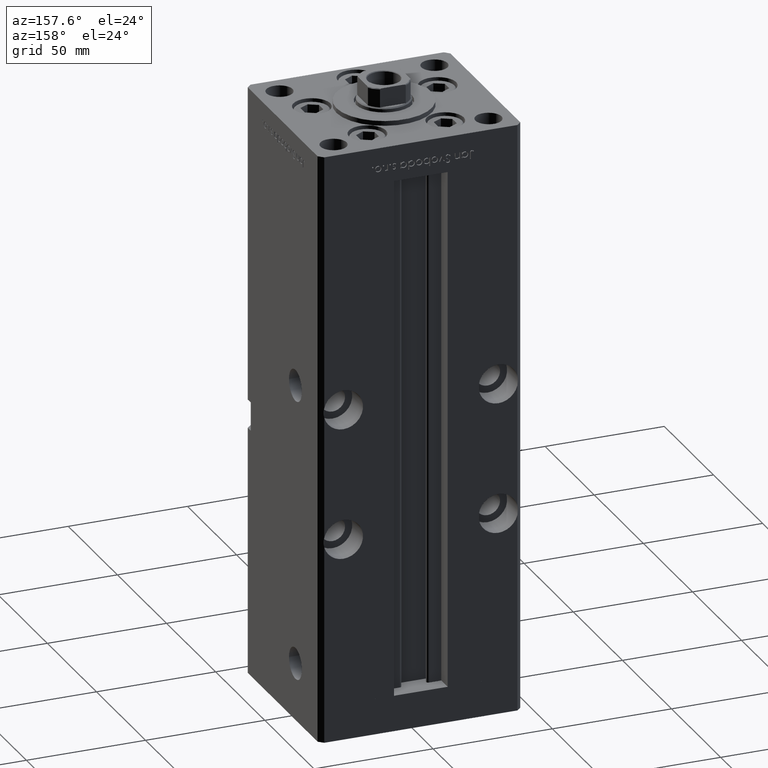
[diagram: clean part render]
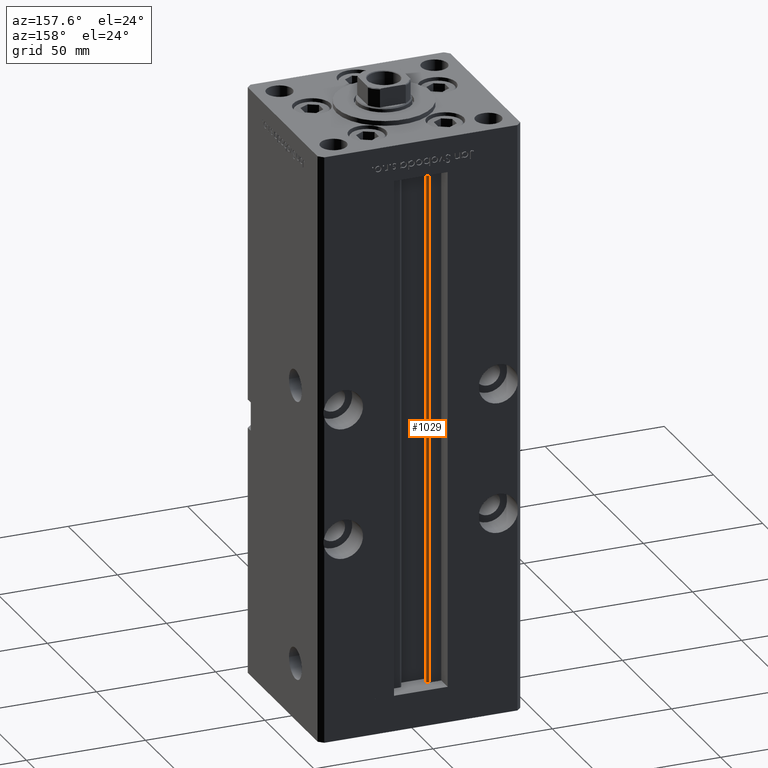
[diagram: same view with one face highlighted and labeled with its STEP entity id]
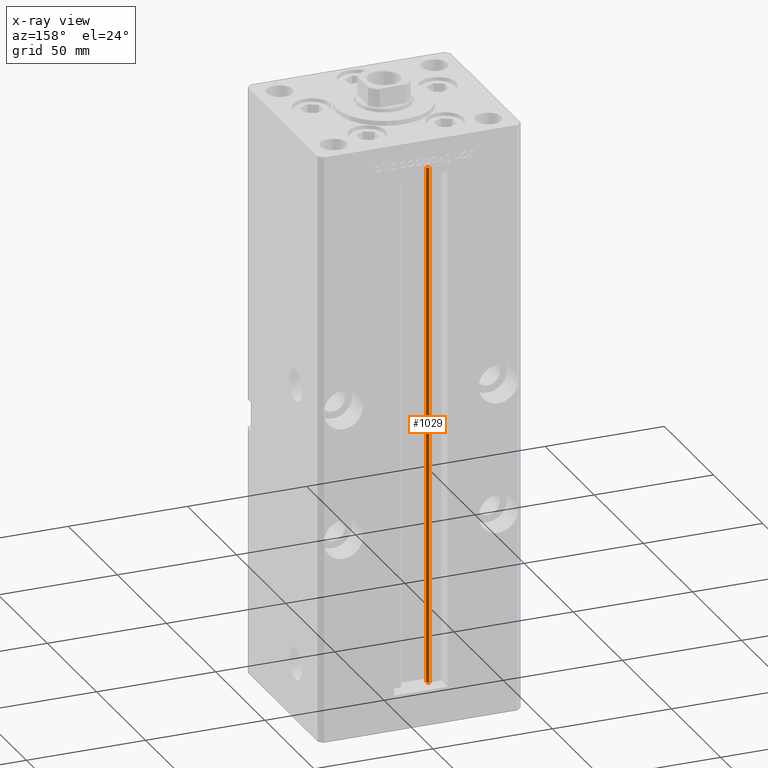
[diagram: x-ray of the same camera — body ghosted, the highlighted face saturated]
A machine part, auxiliary view. The second image highlights one B-rep face of the part: STEP entity #1029.
The next image is the same camera in x-ray: the body ghosted, the highlighted face saturated — about 0% of this face is hidden behind the body in this view.
In plain terms, the highlighted cylindrical surface (edge-blend (fillet) strip) has radius 0.9333 mm, axis along (0, 0, 1).
Its self-contained STEP definition (entity closure, byte-faithful):
#1029 = ADVANCED_FACE ( 'NONE', ( #2910 ), #51487, .T. ) ;
#1266 = DIRECTION ( 'NONE',  ( 0.000000000000000000, 0.000000000000000000, -1.000000000000000000 ) ) ;
#1588 = ORIENTED_EDGE ( 'NONE', *, *, #34592, .T. ) ;
#2910 = FACE_OUTER_BOUND ( 'NONE', #8895, .T. ) ;
#4007 = CARTESIAN_POINT ( 'NONE',  ( -6.183333333333997928, 30.06666666666599852, 0.000000000000000000 ) ) ;
#6522 = EDGE_CURVE ( 'NONE', #9412, #42160, #23568, .T. ) ;
#6610 = ORIENTED_EDGE ( 'NONE', *, *, #11333, .F. ) ;
#8895 = EDGE_LOOP ( 'NONE', ( #18628, #6610, #29944, #1588 ) ) ;
#9412 = VERTEX_POINT ( 'NONE', #37231 ) ;
#10114 = LINE ( 'NONE', #18740, #12232 ) ;
#10204 = DIRECTION ( 'NONE',  ( 1.000000000000000000, 0.000000000000000000, 0.000000000000000000 ) ) ;
#11333 = EDGE_CURVE ( 'NONE', #9412, #20193, #19101, .T. ) ;
#12232 = VECTOR ( 'NONE', #43053, 1000.000000000000000 ) ;
#12508 = CARTESIAN_POINT ( 'NONE',  ( -5.249999999999996447, 30.06666666666599852, 0.000000000000000000 ) ) ;
#12663 = CIRCLE ( 'NONE', #27308, 0.9333333333340008142 ) ;
#12721 = AXIS2_PLACEMENT_3D ( 'NONE', #52286, #15316, #10204 ) ;
#13666 = CARTESIAN_POINT ( 'NONE',  ( -5.249999999999996447, 30.06666666666599852, 218.5000000000000000 ) ) ;
#15316 = DIRECTION ( 'NONE',  ( -0.000000000000000000, -0.000000000000000000, 1.000000000000000000 ) ) ;
#18628 = ORIENTED_EDGE ( 'NONE', *, *, #41846, .F. ) ;
#18721 = CARTESIAN_POINT ( 'NONE',  ( -6.183333333333997928, 31.00000000000000000, 0.000000000000000000 ) ) ;
#18740 = CARTESIAN_POINT ( 'NONE',  ( -5.249999999999996447, 30.06666666666599852, 0.000000000000000000 ) ) ;
#19101 = CIRCLE ( 'NONE', #26019, 0.9333333333340008142 ) ;
#20193 = VERTEX_POINT ( 'NONE', #12508 ) ;
#20512 = VECTOR ( 'NONE', #35752, 1000.000000000000000 ) ;
#23568 = LINE ( 'NONE', #18721, #20512 ) ;
#26019 = AXIS2_PLACEMENT_3D ( 'NONE', #4007, #38015, #33167 ) ;
#27308 = AXIS2_PLACEMENT_3D ( 'NONE', #38242, #1266, #30129 ) ;
#29944 = ORIENTED_EDGE ( 'NONE', *, *, #6522, .T. ) ;
#30129 = DIRECTION ( 'NONE',  ( 1.000000000000000000, 0.000000000000000000, 0.000000000000000000 ) ) ;
#31540 = VERTEX_POINT ( 'NONE', #13666 ) ;
#31643 = CARTESIAN_POINT ( 'NONE',  ( -6.183333333333997928, 31.00000000000000000, 218.5000000000000000 ) ) ;
#33167 = DIRECTION ( 'NONE',  ( 1.000000000000000000, 0.000000000000000000, 0.000000000000000000 ) ) ;
#34592 = EDGE_CURVE ( 'NONE', #42160, #31540, #12663, .T. ) ;
#35752 = DIRECTION ( 'NONE',  ( -0.000000000000000000, -0.000000000000000000, 1.000000000000000000 ) ) ;
#37231 = CARTESIAN_POINT ( 'NONE',  ( -6.183333333333997928, 31.00000000000000000, 0.000000000000000000 ) ) ;
#38015 = DIRECTION ( 'NONE',  ( -0.000000000000000000, -0.000000000000000000, -1.000000000000000000 ) ) ;
#38242 = CARTESIAN_POINT ( 'NONE',  ( -6.183333333333997928, 30.06666666666599852, 218.5000000000000000 ) ) ;
#41846 = EDGE_CURVE ( 'NONE', #20193, #31540, #10114, .T. ) ;
#42160 = VERTEX_POINT ( 'NONE', #31643 ) ;
#43053 = DIRECTION ( 'NONE',  ( -0.000000000000000000, -0.000000000000000000, 1.000000000000000000 ) ) ;
#51487 = CYLINDRICAL_SURFACE ( 'NONE', #12721, 0.9333333333340008142 ) ;
#52286 = CARTESIAN_POINT ( 'NONE',  ( -6.183333333333997928, 30.06666666666599852, 0.000000000000000000 ) ) ;